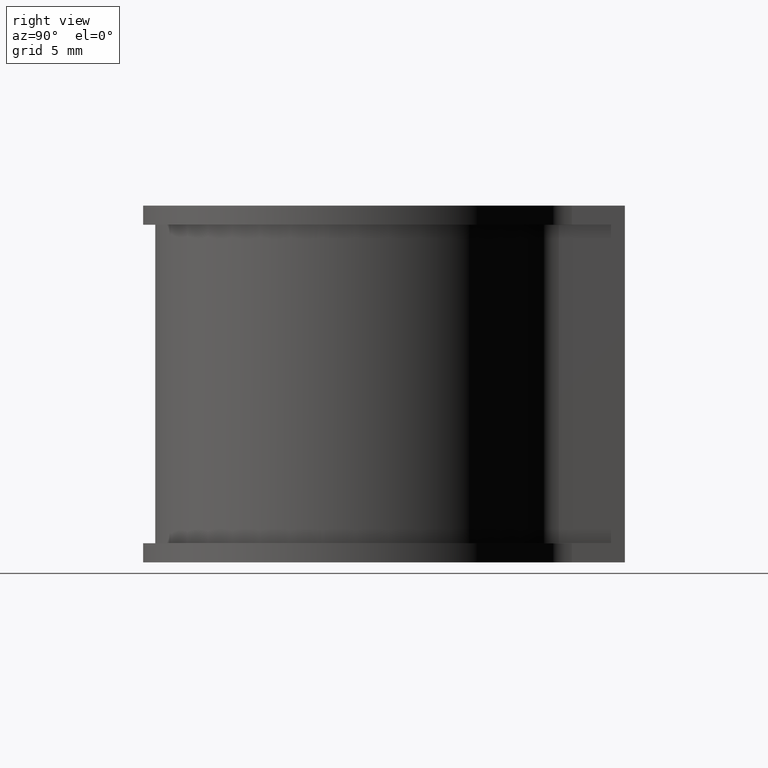
[diagram: clean part render]
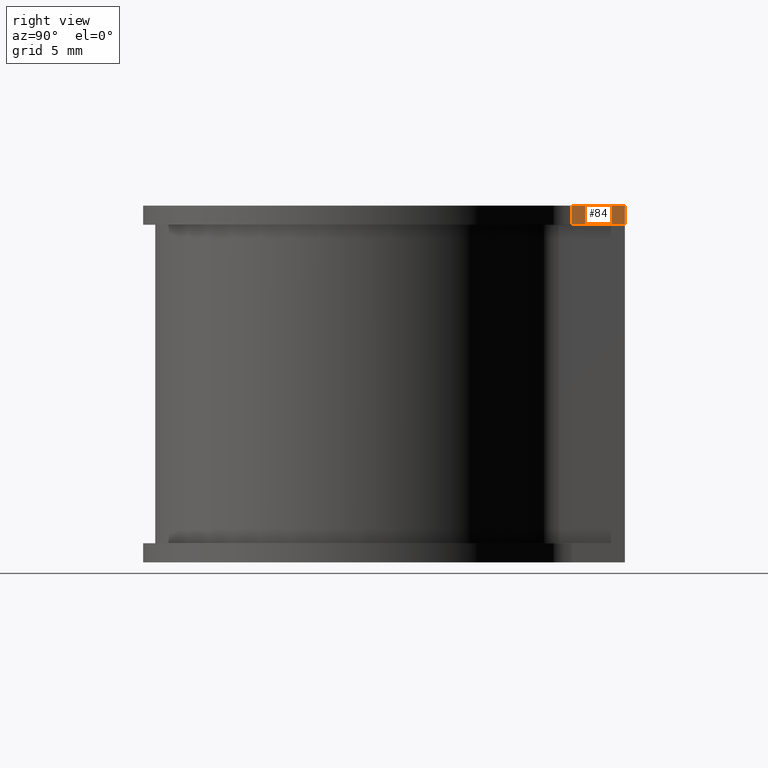
[diagram: same view with one face highlighted and labeled with its STEP entity id]
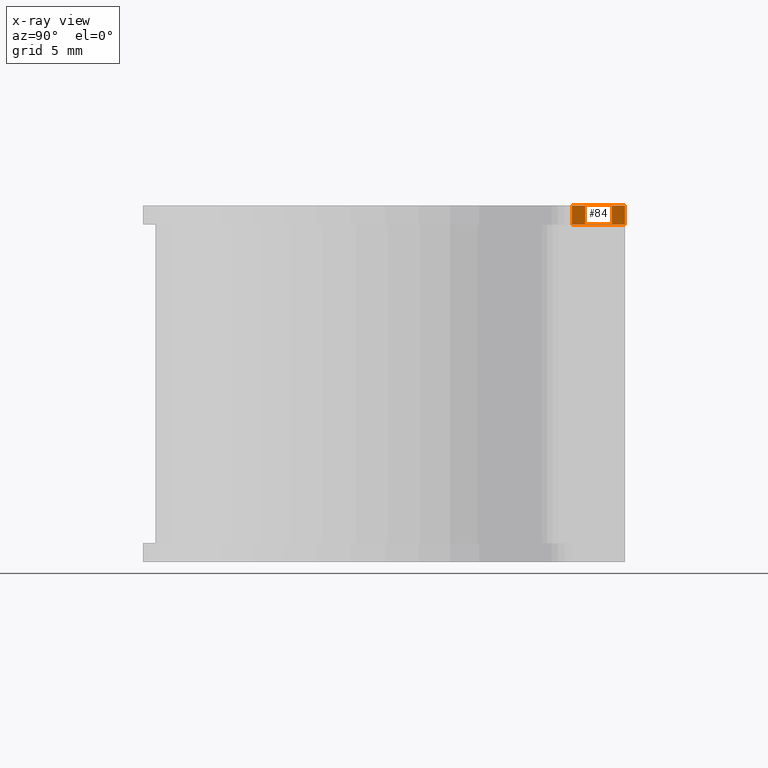
[diagram: x-ray of the same camera — body ghosted, the highlighted face saturated]
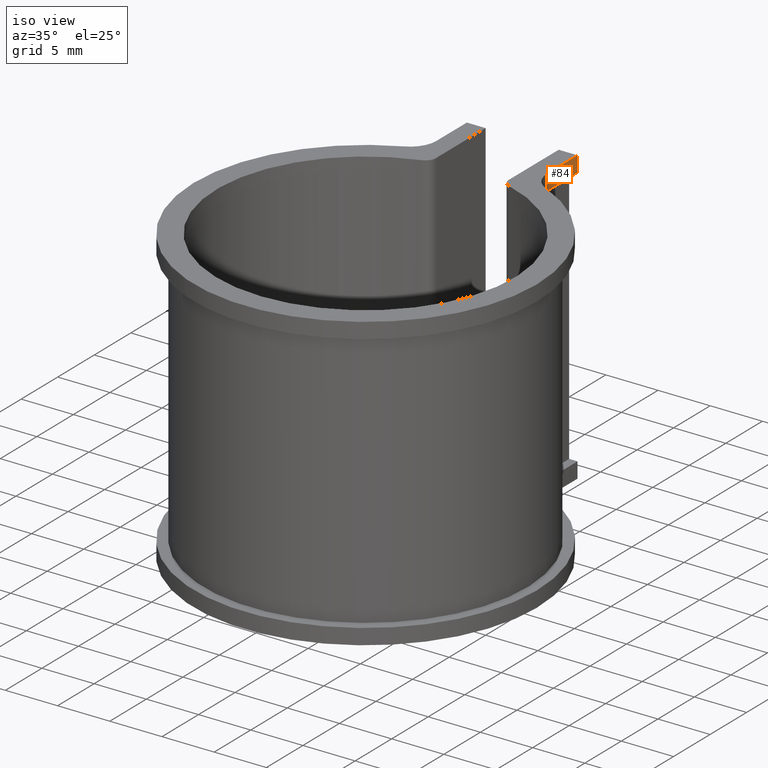
[diagram: same view with one face highlighted and labeled with its STEP entity id]
A machine part, right view. The second image highlights one B-rep face of the part: STEP entity #84.
The next image is the same camera in x-ray: the body ghosted, the highlighted face saturated — about 0% of this face is hidden behind the body in this view.
A second angle (iso view) of the same face is appended — the face is thin or edge-on in the first view.
In plain terms, the highlighted planar face has unit normal (-1, 0, 0).
Its self-contained STEP definition (entity closure, byte-faithful):
#84 = ADVANCED_FACE( '', ( #120 ), #121, .F. );
#120 = FACE_OUTER_BOUND( '', #172, .T. );
#121 = PLANE( '', #173 );
#172 = EDGE_LOOP( '', ( #297, #298, #299, #300 ) );
#173 = AXIS2_PLACEMENT_3D( '', #301, #302, #303 );
#297 = ORIENTED_EDGE( '', *, *, #473, .F. );
#298 = ORIENTED_EDGE( '', *, *, #477, .T. );
#299 = ORIENTED_EDGE( '', *, *, #460, .T. );
#300 = ORIENTED_EDGE( '', *, *, #478, .F. );
#301 = CARTESIAN_POINT( '', ( 5.30000000000000, 15.5622491947662, 1.50000000000000 ) );
#302 = DIRECTION( '', ( -1.00000000000000, 6.12303176911189E-017, 0.000000000000000 ) );
#303 = DIRECTION( '', ( -6.12303176911189E-017, -1.00000000000000, 0.000000000000000 ) );
#460 = EDGE_CURVE( '', #561, #559, #562, .T. );
#473 = EDGE_CURVE( '', #583, #585, #586, .T. );
#477 = EDGE_CURVE( '', #583, #561, #590, .F. );
#478 = EDGE_CURVE( '', #585, #559, #591, .T. );
#559 = VERTEX_POINT( '', #701 );
#561 = VERTEX_POINT( '', #704 );
#562 = LINE( '', #705, #706 );
#583 = VERTEX_POINT( '', #731 );
#585 = VERTEX_POINT( '', #733 );
#586 = LINE( '', #734, #735 );
#590 = LINE( '', #741, #742 );
#591 = LINE( '', #743, #744 );
#701 = CARTESIAN_POINT( '', ( 5.30000000000000, 21.4219465658192, 0.000000000000000 ) );
#704 = CARTESIAN_POINT( '', ( 5.30000000000000, 17.2593047368659, 0.000000000000000 ) );
#705 = CARTESIAN_POINT( '', ( 5.30000000000000, 15.5622491947662, 0.000000000000000 ) );
#706 = VECTOR( '', #838, 1000.00000000000 );
#731 = CARTESIAN_POINT( '', ( 5.30000000000000, 17.2593047368659, 1.50000000000000 ) );
#733 = CARTESIAN_POINT( '', ( 5.30000000000000, 21.4219465658192, 1.50000000000000 ) );
#734 = CARTESIAN_POINT( '', ( 5.30000000000000, 15.5622491947662, 1.50000000000000 ) );
#735 = VECTOR( '', #867, 1000.00000000000 );
#741 = CARTESIAN_POINT( '', ( 5.30000000000000, 17.2593047368659, 0.000000000000000 ) );
#742 = VECTOR( '', #873, 1000.00000000000 );
#743 = CARTESIAN_POINT( '', ( 5.30000000000000, 21.4219465658192, 1.50000000000000 ) );
#744 = VECTOR( '', #874, 1000.00000000000 );
#838 = DIRECTION( '', ( 6.12303176911189E-017, 1.00000000000000, 0.000000000000000 ) );
#867 = DIRECTION( '', ( 6.12303176911189E-017, 1.00000000000000, 0.000000000000000 ) );
#873 = DIRECTION( '', ( 0.000000000000000, 0.000000000000000, 1.00000000000000 ) );
#874 = DIRECTION( '', ( 0.000000000000000, 0.000000000000000, -1.00000000000000 ) );